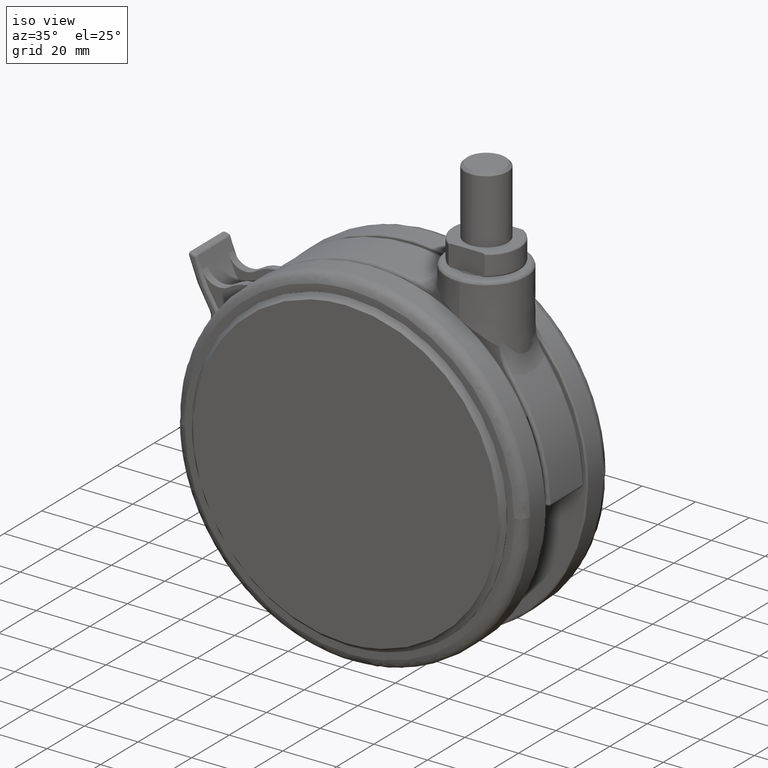
[diagram: clean part render]
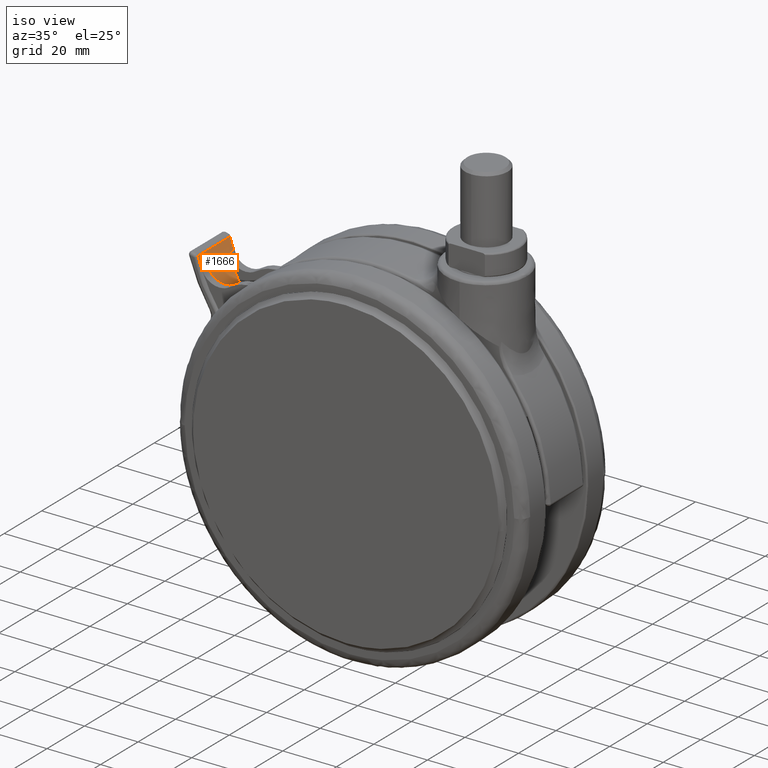
[diagram: same view with one face highlighted and labeled with its STEP entity id]
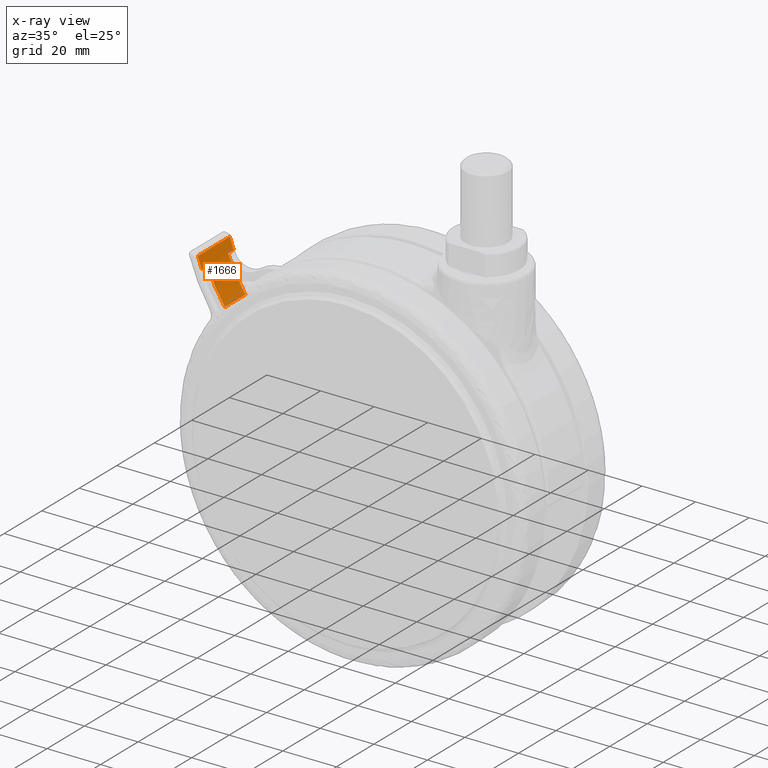
[diagram: x-ray of the same camera — body ghosted, the highlighted face saturated]
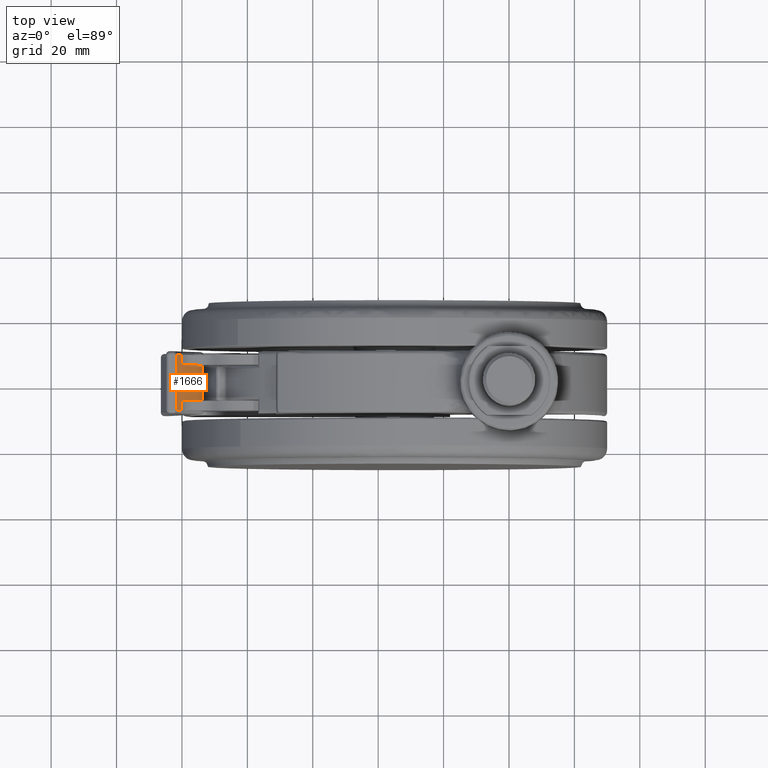
[diagram: same view with one face highlighted and labeled with its STEP entity id]
A machine part, iso view. The second image highlights one B-rep face of the part: STEP entity #1666.
The next image is the same camera in x-ray: the body ghosted, the highlighted face saturated — about 8% of this face is hidden behind the body in this view.
A second angle (top view) of the same face is appended — the face is thin or edge-on in the first view.
In plain terms, the highlighted face is a freeform B-spline surface patch.
Its self-contained STEP definition (entity closure, byte-faithful):
#497=CARTESIAN_POINT('',(-101.750032953885000,-8.499999999999840,-22.044588095935651));
#498=VERTEX_POINT('',#497);
#565=CARTESIAN_POINT('',(-101.750032953885000,8.500000000000000,-22.044588095935651));
#566=VERTEX_POINT('',#565);
#1035=CARTESIAN_POINT('',(-101.750032953885000,8.500000000000000,-22.044588095935651));
#1036=CARTESIAN_POINT('',(-101.750032953885000,-8.499999999999840,-22.044588095935651));
#1037=QUASI_UNIFORM_CURVE('',1,(#1035,#1036),.UNSPECIFIED.,.F.,.U.);
#1038=EDGE_CURVE('',#566,#498,#1037,.T.);
#1060=CARTESIAN_POINT('',(-100.279604857405400,8.500000000000171,-26.163941481141300));
#1061=VERTEX_POINT('',#1060);
#1078=CARTESIAN_POINT('',(-100.279604857405400,5.500000000000170,-26.163941481141300));
#1079=VERTEX_POINT('',#1078);
#1080=CARTESIAN_POINT('',(-100.279604857405400,5.500000000000170,-26.163941481141300));
#1081=CARTESIAN_POINT('',(-100.279604857405400,8.500000000000171,-26.163941481141300));
#1082=QUASI_UNIFORM_CURVE('',1,(#1080,#1081),.UNSPECIFIED.,.F.,.U.);
#1083=EDGE_CURVE('',#1079,#1061,#1082,.T.);
#1256=CARTESIAN_POINT('',(-100.279604857405400,-8.499999999999840,-26.163941481141300));
#1257=VERTEX_POINT('',#1256);
#1281=CARTESIAN_POINT('',(-100.279604857405400,-5.499999999999840,-26.163941481141300));
#1282=VERTEX_POINT('',#1281);
#1297=CARTESIAN_POINT('',(-100.279604857405400,-5.499999999999840,-26.163941481141300));
#1298=CARTESIAN_POINT('',(-100.279604857405400,-8.499999999999840,-26.163941481141300));
#1299=QUASI_UNIFORM_CURVE('',1,(#1297,#1298),.UNSPECIFIED.,.F.,.U.);
#1300=EDGE_CURVE('',#1282,#1257,#1299,.T.);
#1586=CARTESIAN_POINT('',(-93.267792035716923,8.925000000000173,-39.121930081042649));
#1587=CARTESIAN_POINT('',(-93.267792035716923,-8.935624999999844,-39.121930081042649));
#1588=CARTESIAN_POINT('',(-99.095074112595725,8.925000000000171,-30.857470415900615));
#1589=CARTESIAN_POINT('',(-99.095074112595725,-8.935624999999842,-30.857470415900615));
#1590=CARTESIAN_POINT('',(-102.018942090736840,8.925000000000171,-21.177103377059940));
#1591=CARTESIAN_POINT('',(-102.018942090736840,-8.935624999999842,-21.177103377059940));
#1599=(BOUNDED_SURFACE()B_SPLINE_SURFACE(1,2,((#1586,#1588,#1590),(#1587,#1589,#1591)),.UNSPECIFIED.,.F.,.F.,.U.)B_SPLINE_SURFACE_WITH_KNOTS((2,2),(3,3),(0.0,17.860625000000020),(0.0,20.093926746251789),.UNSPECIFIED.)GEOMETRIC_REPRESENTATION_ITEM()RATIONAL_B_SPLINE_SURFACE(((0.998455765876030,0.984466874189230,0.996084450861795),(0.998455765876030,0.984466874189230,0.996084450861795)))REPRESENTATION_ITEM('')SURFACE());
#1600=ORIENTED_EDGE('',*,*,#1083,.T.);
#1601=CARTESIAN_POINT('',(-100.279604857405500,8.500000000000000,-26.163941481141318));
#1602=CARTESIAN_POINT('',(-101.086934060127060,8.500000000000000,-24.130006728939346));
#1603=CARTESIAN_POINT('',(-101.750032953885100,8.500000000000000,-22.044588095935651));
#1611=(BOUNDED_CURVE()B_SPLINE_CURVE(2,(#1601,#1602,#1603),.UNSPECIFIED.,.F.,.U.)CURVE()GEOMETRIC_REPRESENTATION_ITEM()QUASI_UNIFORM_CURVE()RATIONAL_B_SPLINE_CURVE((1.0,0.999387613095968,1.0))REPRESENTATION_ITEM(''));
#1612=EDGE_CURVE('',#1061,#566,#1611,.T.);
#1613=ORIENTED_EDGE('',*,*,#1612,.T.);
#1614=ORIENTED_EDGE('',*,*,#1038,.T.);
#1615=CARTESIAN_POINT('',(-101.750032953885100,-8.499999999999840,-22.044588095935641));
#1616=CARTESIAN_POINT('',(-101.086934060127050,-8.499999999999840,-24.130006728939222));
#1617=CARTESIAN_POINT('',(-100.279604857405500,-8.499999999999840,-26.163941481141300));
#1625=(BOUNDED_CURVE()B_SPLINE_CURVE(2,(#1615,#1616,#1617),.UNSPECIFIED.,.F.,.U.)CURVE()GEOMETRIC_REPRESENTATION_ITEM()QUASI_UNIFORM_CURVE()RATIONAL_B_SPLINE_CURVE((1.0,0.999387613095968,1.0))REPRESENTATION_ITEM(''));
#1626=EDGE_CURVE('',#498,#1257,#1625,.T.);
#1627=ORIENTED_EDGE('',*,*,#1626,.T.);
#1628=ORIENTED_EDGE('',*,*,#1300,.F.);
#1629=CARTESIAN_POINT('',(-93.784584280583999,-5.499999999999840,-38.377597706861053));
#1630=VERTEX_POINT('',#1629);
#1631=CARTESIAN_POINT('',(-100.279604857405500,-5.499999999999840,-26.163941481141300));
#1632=CARTESIAN_POINT('',(-97.712089366893792,-5.499999999999840,-32.632379592093727));
#1633=CARTESIAN_POINT('',(-93.784584280584056,-5.499999999999840,-38.377597706861060));
#1641=(BOUNDED_CURVE()B_SPLINE_CURVE(2,(#1631,#1632,#1633),.UNSPECIFIED.,.F.,.U.)CURVE()GEOMETRIC_REPRESENTATION_ITEM()QUASI_UNIFORM_CURVE()RATIONAL_B_SPLINE_CURVE((1.0,0.993857657713428,1.0))REPRESENTATION_ITEM(''));
#1642=EDGE_CURVE('',#1282,#1630,#1641,.T.);
#1643=ORIENTED_EDGE('',*,*,#1642,.T.);
#1644=CARTESIAN_POINT('',(-93.784584280583999,5.500000000000150,-38.377597706861053));
#1645=VERTEX_POINT('',#1644);
#1646=CARTESIAN_POINT('',(-93.784584280583999,-5.499999999999840,-38.377597706861053));
#1647=CARTESIAN_POINT('',(-93.784584280583999,5.500000000000150,-38.377597706861053));
#1648=QUASI_UNIFORM_CURVE('',1,(#1646,#1647),.UNSPECIFIED.,.F.,.U.);
#1649=EDGE_CURVE('',#1630,#1645,#1648,.T.);
#1650=ORIENTED_EDGE('',*,*,#1649,.T.);
#1651=CARTESIAN_POINT('',(-100.279604857405500,5.500000000000000,-26.163941481141300));
#1652=CARTESIAN_POINT('',(-97.712089366893792,5.500000000000000,-32.632379592093727));
#1653=CARTESIAN_POINT('',(-93.784584280584056,5.500000000000000,-38.377597706861060));
#1661=(BOUNDED_CURVE()B_SPLINE_CURVE(2,(#1651,#1652,#1653),.UNSPECIFIED.,.F.,.U.)CURVE()GEOMETRIC_REPRESENTATION_ITEM()QUASI_UNIFORM_CURVE()RATIONAL_B_SPLINE_CURVE((1.0,0.993857657713428,1.0))REPRESENTATION_ITEM(''));
#1662=EDGE_CURVE('',#1079,#1645,#1661,.T.);
#1663=ORIENTED_EDGE('',*,*,#1662,.F.);
#1664=EDGE_LOOP('',(#1600,#1613,#1614,#1627,#1628,#1643,#1650,#1663));
#1665=FACE_OUTER_BOUND('',#1664,.T.);
#1666=ADVANCED_FACE('',(#1665),#1599,.F.);